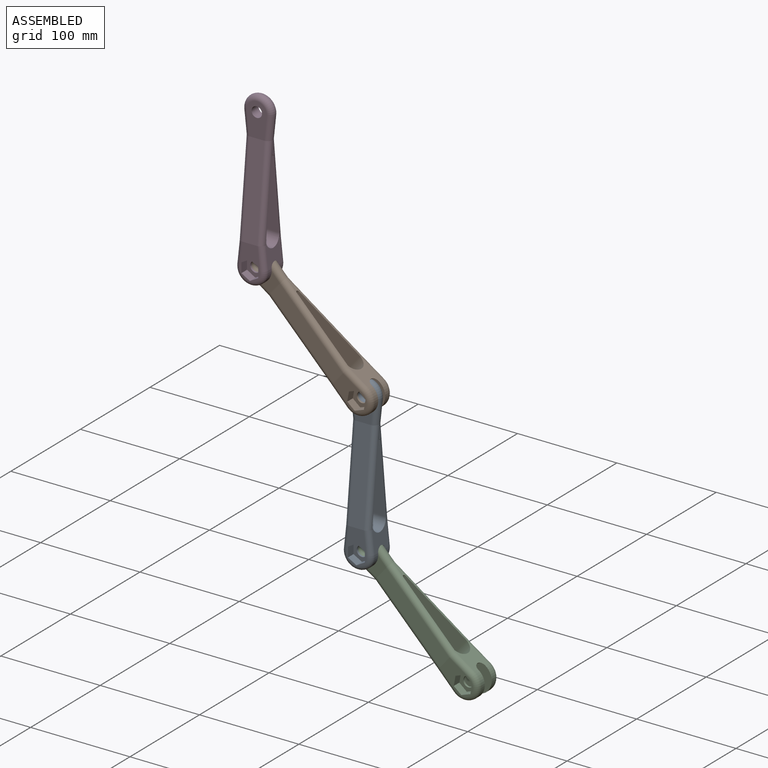
[diagram: assembled view]
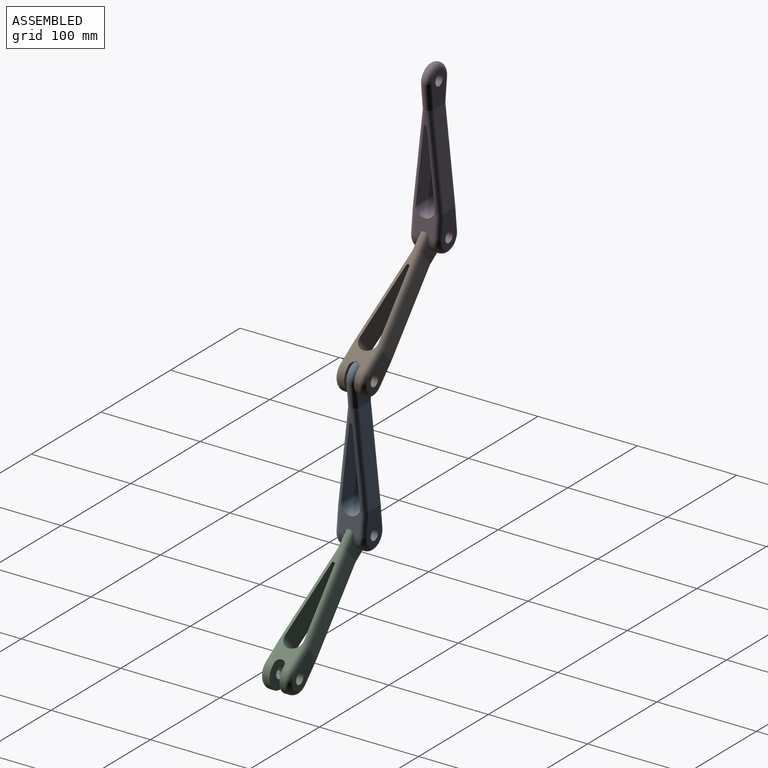
[diagram: assembled view, second angle]
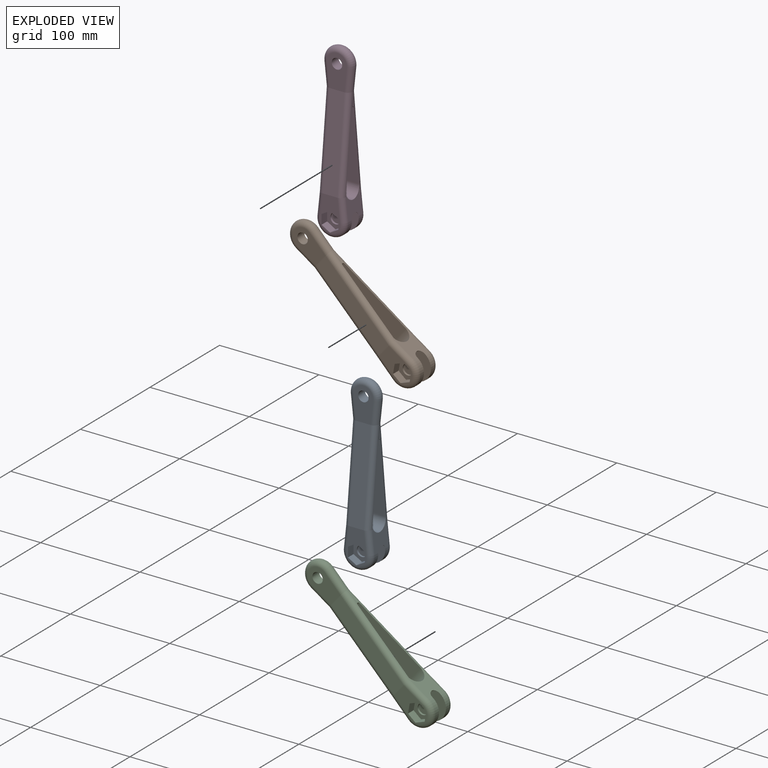
[diagram: exploded view]
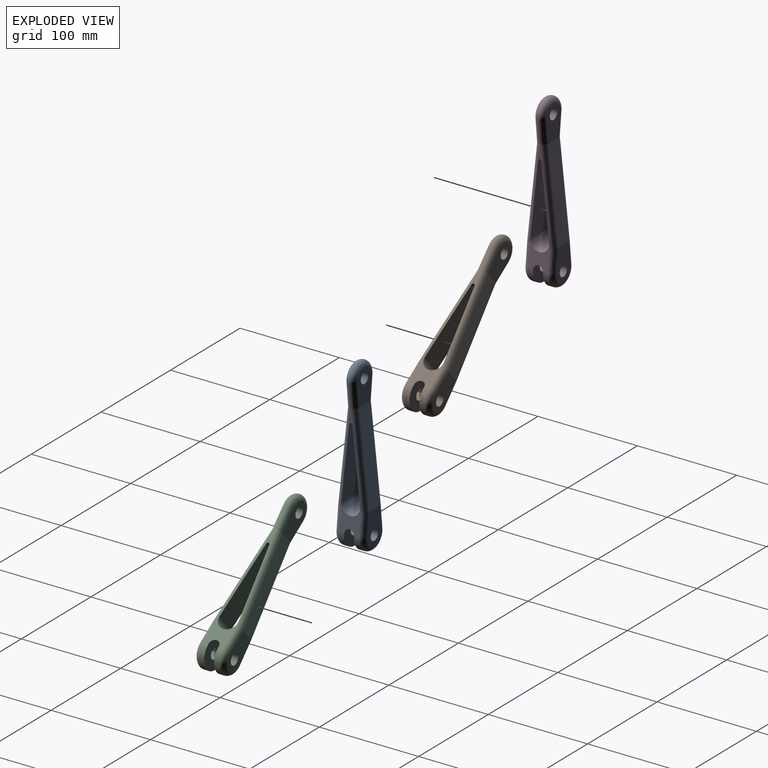
[diagram: exploded view, second angle]
ASSEMBLY  parts=4 mates=3
PART A: 46 faces, bbox 33.5x31.1x173.5 mm
  f0: cylinder r=5.25mm len=10.5mm, axis (0,1,0), area 66mm2, adj f1,f45
  f1: plane 19.63x17mm, normal (0,-1,0), area 163.7mm2, adj f0,f2,f40,f41,f42,f43,f44
  f2: plane 9.82x8mm, normal (-1,0,0), area 78.5mm2, adj f1,f3,f40,f44
  f3: plane 34.01x20.01mm, normal (0,-1,0), area 327.4mm2, adj f2,f4,f35,f36,f37,f38,f39,f40
  f4: cylinder r=5mm len=93.26mm, axis (0,-0.11,-0.99), area 737.1mm2, adj f3,f5,f31,f32,f33,f34,f35,f39
  f5: cylinder r=5mm len=93.26mm, axis (0,-0.11,0.99), area 738.8mm2, adj f4,f6,f8,f25,f26,f27,f28,f31
  f6: cylinder r=5mm len=24.43mm, axis (1,0,0), area 7.1mm2, adj f5,f7,f8,f28
  f7: plane 0.69x0.07mm, normal (-0.99,0,0.11), area 0mm2, adj f6,f8,f28
  f8: plane 77.04x25mm, normal (0,-0.99,-0.11), area 1799.6mm2, adj f5,f6,f7,f9,f19,f31
  f9: plane 28.31x21.07mm, normal (-0.99,0,0.11), area 341.9mm2, adj f8,f10,f15,f16,f18,f19,f28,f37
  f10: cylinder r=5mm len=10mm, axis (1,0,0), area 0mm2, adj f9,f11
  f11: cylinder r=15mm len=29.83mm, axis (0,1,0), area 358.1mm2, adj f10,f12,f13,f45
  f12: cylinder r=5mm len=10mm, axis (1,0,0), area 0mm2, adj f11,f33
  f13: plane 30x30mm, normal (0,-1,0), area 620.3mm2, adj f11,f14,f18
  f14: cylinder r=5.25mm len=10.5mm, axis (0,1,0), area 329.9mm2, adj f13,f26
  f15: cylinder r=15mm len=30mm, axis (0,1,0), area 251.7mm2, adj f9,f33,f36,f45
  f16: cylinder r=5mm len=23.45mm, axis (-0.11,0,-0.99), area 178.3mm2, adj f9,f17,f19,f26
  f17: torus R=10mm, axis (0,-1,0), area 347.5mm2, adj f16,f18,f26,f27
  f18: cylinder r=15mm len=30mm, axis (0,1,0), area 251.7mm2, adj f9,f13,f17,f33
  f19: cylinder r=5mm len=93.26mm, axis (0,0.11,-0.99), area 737.1mm2, adj f8,f9,f16,f20,f25,f26,f31,f38
  f20: cylinder r=5mm len=23.45mm, axis (-0.11,0,0.99), area 356.7mm2, adj f19,f21,f23,f24,f25,f38,f39
  f21: plane 33.99x20mm, normal (0,1,0), area 490.9mm2, adj f20,f22,f23,f25,f34
  f22: cylinder r=5.25mm len=10.5mm, axis (0,1,0), area 329.9mm2, adj f21,f24
  f23: torus R=10mm, axis (0,-1,0), area 695.1mm2, adj f20,f21,f24,f34
  f24: plane 33.99x20mm, normal (0,-1,0), area 490.9mm2, adj f20,f22,f23,f34,f39
  f25: plane 92.02x15mm, normal (0,0.99,0.11), area 1388.3mm2, adj f5,f19,f20,f21,f26,f34
  f26: plane 34.01x20.01mm, normal (0,1,0), area 491.1mm2, adj f5,f14,f16,f17,f19,f25,f27
  f27: cylinder r=5mm len=23.45mm, axis (-0.11,0,0.99), area 178.3mm2, adj f5,f17,f26,f33
  f28: cylinder r=9.5mm len=26.23mm, axis (1,0,0), area 831.6mm2, adj f5,f6,f7,f9,f29,f30,f33,f38
  f29: plane 0.69x0.07mm, normal (0.99,0,0.11), area 0mm2, adj f28,f30,f32
  f30: cylinder r=5mm len=24.43mm, axis (1,0,0), area 7.1mm2, adj f28,f29,f32,f38
  f31: cylinder r=1.61mm len=25mm, axis (-1,0,0), area 116.8mm2, adj f4,f5,f8,f19,f32,f38
  f32: plane 77.04x25mm, normal (0,0.99,-0.11), area 1799.6mm2, adj f4,f29,f30,f31,f33,f38
  f33: plane 28.31x21.07mm, normal (0.99,0,0.11), area 341.9mm2, adj f4,f5,f12,f15,f18,f27,f28,f32
  f34: cylinder r=5mm len=23.45mm, axis (-0.11,0,-0.99), area 356.7mm2, adj f4,f5,f21,f23,f24,f25,f39
  f35: cylinder r=5mm len=23.45mm, axis (0.11,0,-0.99), area 178.3mm2, adj f3,f4,f33,f36
  f36: torus R=10mm, axis (0,-1,0), area 347.5mm2, adj f3,f15,f35,f37
  f37: cylinder r=5mm len=23.45mm, axis (0.11,0,0.99), area 178.3mm2, adj f3,f9,f36,f38
  f38: cylinder r=5mm len=93.26mm, axis (0,0.11,0.99), area 738.8mm2, adj f3,f9,f19,f20,f28,f30,f31,f32
  f39: plane 92.02x15mm, normal (0,-0.99,0.11), area 1388.3mm2, adj f3,f4,f20,f24,f34,f38
  f40: plane 8.5x8mm, normal (-0.5,0,0.87), area 78.5mm2, adj f1,f2,f3,f41
  f41: plane 8.5x8mm, normal (0.5,0,0.87), area 78.5mm2, adj f1,f3,f40,f42
  f42: plane 9.82x8mm, normal (1,0,0), area 78.5mm2, adj f1,f3,f41,f43
  f43: plane 8.5x8mm, normal (0.5,0,-0.87), area 78.5mm2, adj f1,f3,f42,f44
  f44: plane 8.5x8mm, normal (-0.5,0,-0.87), area 78.5mm2, adj f1,f2,f3,f43
  f45: plane 30x30mm, normal (0,1,0), area 620.3mm2, adj f0,f11,f15
PART B: same geometry as A
PART C: same geometry as A
PART D: same geometry as A
PLACE A t=(165.87,-168.48,-193.47)mm
PLACE B rot(axis=(0,-1,0),50deg) t=(112.25,-168.48,-78.47)mm
PLACE C rot(axis=(0,-1,0),50deg) t=(219.49,-168.48,-308.46)mm
PLACE D t=(58.62,-168.48,36.52)mm
MATE revolute B.f22 <-> D.f0  axis (0,-1,0) through (58.62,-158.48,-33.48)mm
MATE revolute C.f22 <-> A.f0  axis (0,-1,0) through (165.87,-158.48,-263.47)mm
MATE revolute A.f22 <-> B.f0  axis (0,1,0) through (165.87,-148.48,-123.47)mm
